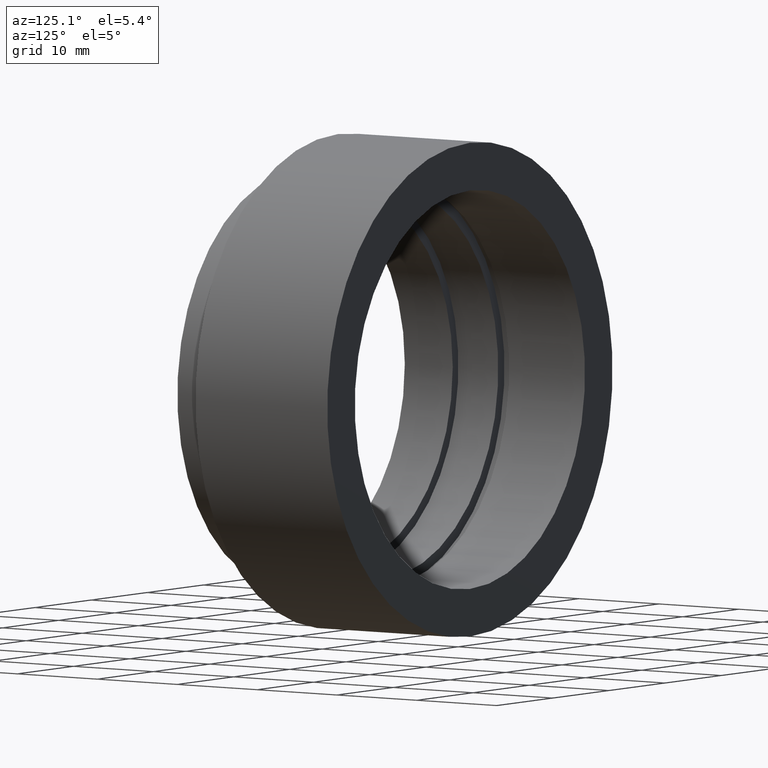
[diagram: clean part render]
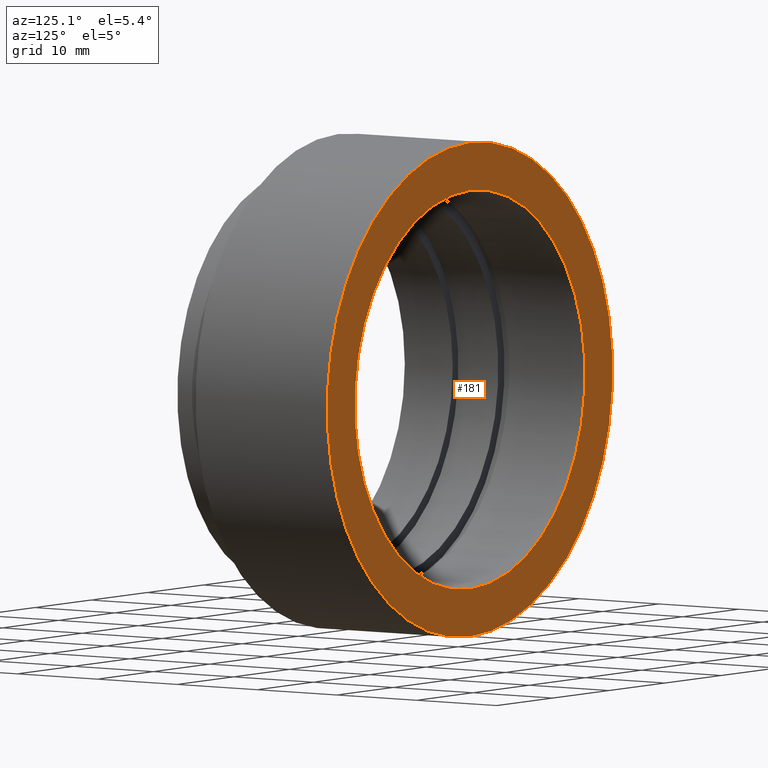
[diagram: same view with one face highlighted and labeled with its STEP entity id]
A machine part, auxiliary view. The second image highlights one B-rep face of the part: STEP entity #181.
In plain terms, the highlighted planar face has unit normal (0, 1, 0).
Its self-contained STEP definition (entity closure, byte-faithful):
#2 = CARTESIAN_POINT ( 'NONE',  ( 0.0000000000000000000, 21.50000000000000000, 0.0000000000000000000 ) ) ;
#44 = DIRECTION ( 'NONE',  ( 0.0000000000000000000, 0.0000000000000000000, -1.000000000000000000 ) ) ;
#72 = CIRCLE ( 'NONE', #538, 20.50000000000000000 ) ;
#74 = VERTEX_POINT ( 'NONE', #412 ) ;
#80 = CARTESIAN_POINT ( 'NONE',  ( 0.0000000000000000000, 21.50000000000000000, 0.0000000000000000000 ) ) ;
#101 = CARTESIAN_POINT ( 'NONE',  ( 2.510525938252074500E-015, 21.50000000000000000, 20.50000000000000000 ) ) ;
#105 = EDGE_CURVE ( 'NONE', #390, #74, #428, .T. ) ;
#118 = DIRECTION ( 'NONE',  ( 0.0000000000000000000, -0.0000000000000000000, 1.000000000000000000 ) ) ;
#127 = ORIENTED_EDGE ( 'NONE', *, *, #431, .F. ) ;
#149 = AXIS2_PLACEMENT_3D ( 'NONE', #240, #328, #44 ) ;
#160 = CIRCLE ( 'NONE', #149, 25.39999999999999900 ) ;
#173 = AXIS2_PLACEMENT_3D ( 'NONE', #2, #506, #660 ) ;
#181 = ADVANCED_FACE ( 'NONE', ( #553, #468 ), #555, .T. ) ;
#228 = ORIENTED_EDGE ( 'NONE', *, *, #105, .F. ) ;
#240 = CARTESIAN_POINT ( 'NONE',  ( 0.0000000000000000000, 21.50000000000000000, 0.0000000000000000000 ) ) ;
#326 = DIRECTION ( 'NONE',  ( -0.0000000000000000000, -1.000000000000000000, -0.0000000000000000000 ) ) ;
#328 = DIRECTION ( 'NONE',  ( -0.0000000000000000000, -1.000000000000000000, -0.0000000000000000000 ) ) ;
#330 = CARTESIAN_POINT ( 'NONE',  ( 0.0000000000000000000, 21.50000000000000000, -20.50000000000000000 ) ) ;
#341 = EDGE_CURVE ( 'NONE', #565, #655, #667, .T. ) ;
#390 = VERTEX_POINT ( 'NONE', #589 ) ;
#396 = CARTESIAN_POINT ( 'NONE',  ( 25.39999999999999900, 21.50000000000000000, 0.0000000000000000000 ) ) ;
#412 = CARTESIAN_POINT ( 'NONE',  ( 0.0000000000000000000, 21.50000000000000000, -25.39999999999999900 ) ) ;
#428 = CIRCLE ( 'NONE', #173, 25.39999999999999900 ) ;
#431 = EDGE_CURVE ( 'NONE', #74, #390, #160, .T. ) ;
#464 = DIRECTION ( 'NONE',  ( -0.0000000000000000000, -1.000000000000000000, -0.0000000000000000000 ) ) ;
#468 = FACE_OUTER_BOUND ( 'NONE', #497, .T. ) ;
#471 = DIRECTION ( 'NONE',  ( 0.0000000000000000000, 1.000000000000000000, 0.0000000000000000000 ) ) ;
#482 = CARTESIAN_POINT ( 'NONE',  ( 0.0000000000000000000, 21.50000000000000000, 0.0000000000000000000 ) ) ;
#497 = EDGE_LOOP ( 'NONE', ( #127, #228 ) ) ;
#506 = DIRECTION ( 'NONE',  ( -0.0000000000000000000, -1.000000000000000000, -0.0000000000000000000 ) ) ;
#528 = ORIENTED_EDGE ( 'NONE', *, *, #341, .T. ) ;
#538 = AXIS2_PLACEMENT_3D ( 'NONE', #80, #464, #616 ) ;
#542 = EDGE_LOOP ( 'NONE', ( #528, #554 ) ) ;
#553 = FACE_BOUND ( 'NONE', #542, .T. ) ;
#554 = ORIENTED_EDGE ( 'NONE', *, *, #576, .T. ) ;
#555 = PLANE ( 'NONE',  #615 ) ;
#563 = DIRECTION ( 'NONE',  ( 0.0000000000000000000, 0.0000000000000000000, -1.000000000000000000 ) ) ;
#565 = VERTEX_POINT ( 'NONE', #330 ) ;
#567 = AXIS2_PLACEMENT_3D ( 'NONE', #482, #326, #563 ) ;
#576 = EDGE_CURVE ( 'NONE', #655, #565, #72, .T. ) ;
#589 = CARTESIAN_POINT ( 'NONE',  ( 3.110602869834276900E-015, 21.50000000000000000, 25.39999999999999900 ) ) ;
#615 = AXIS2_PLACEMENT_3D ( 'NONE', #396, #471, #118 ) ;
#616 = DIRECTION ( 'NONE',  ( 0.0000000000000000000, 0.0000000000000000000, -1.000000000000000000 ) ) ;
#655 = VERTEX_POINT ( 'NONE', #101 ) ;
#660 = DIRECTION ( 'NONE',  ( 0.0000000000000000000, 0.0000000000000000000, -1.000000000000000000 ) ) ;
#667 = CIRCLE ( 'NONE', #567, 20.50000000000000000 ) ;